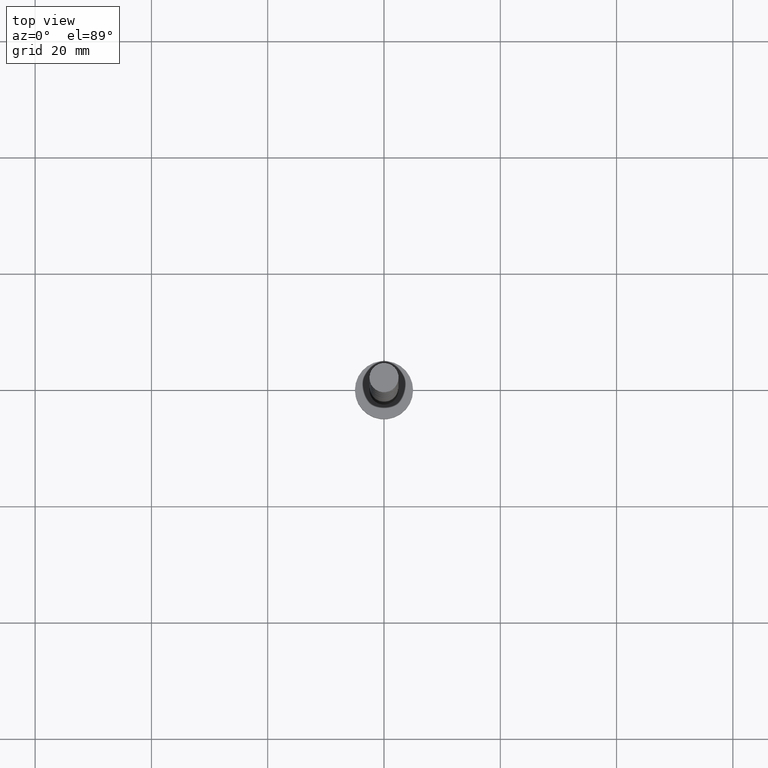
[diagram: clean part render]
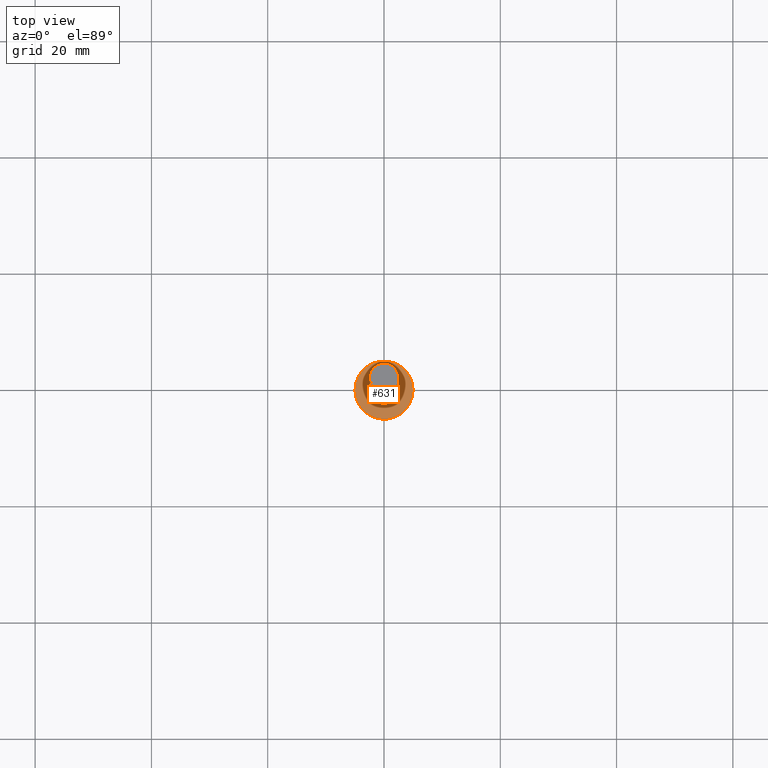
[diagram: same view with one face highlighted and labeled with its STEP entity id]
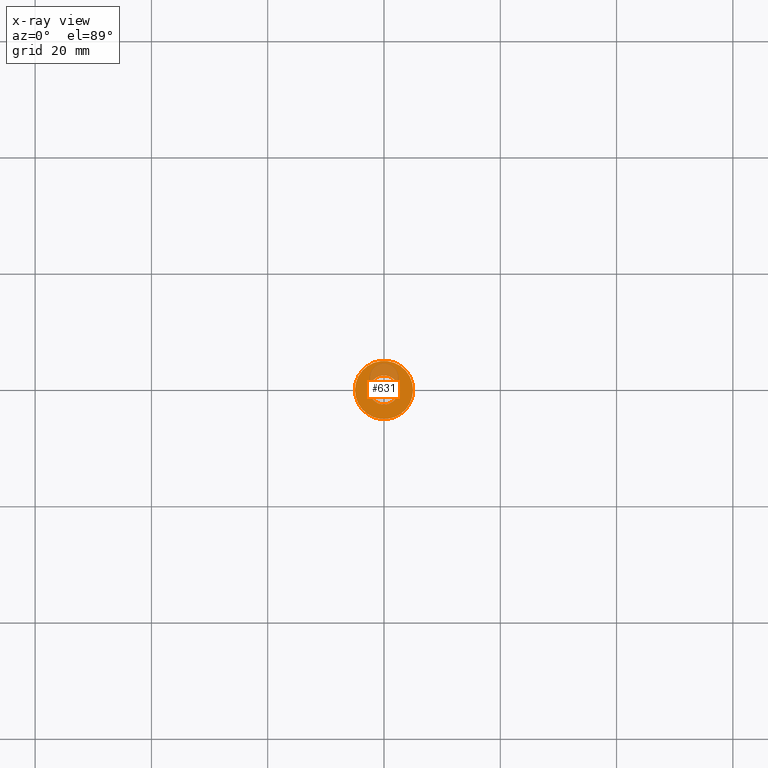
[diagram: x-ray of the same camera — body ghosted, the highlighted face saturated]
A machine part, top view. The second image highlights one B-rep face of the part: STEP entity #631.
The next image is the same camera in x-ray: the body ghosted, the highlighted face saturated — about 18% of this face is hidden behind the body in this view.
In plain terms, the highlighted planar face has unit normal (0, 0, 1).
Its self-contained STEP definition (entity closure, byte-faithful):
#85 = AXIS2_PLACEMENT_3D ( 'NONE', #1490, #363, #738 ) ;
#88 = CIRCLE ( 'NONE', #85, 5.000000000000000000 ) ;
#194 = CARTESIAN_POINT ( 'NONE',  ( 0.000000000000000000, 0.000000000000000000, 3.000000000000000000 ) ) ;
#216 = AXIS2_PLACEMENT_3D ( 'NONE', #1210, #1553, #820 ) ;
#266 = AXIS2_PLACEMENT_3D ( 'NONE', #793, #1040, #1511 ) ;
#335 = VERTEX_POINT ( 'NONE', #1370 ) ;
#363 = DIRECTION ( 'NONE',  ( 0.000000000000000000, 0.000000000000000000, 1.000000000000000000 ) ) ;
#379 = CARTESIAN_POINT ( 'NONE',  ( 0.000000000000000000, 0.000000000000000000, 3.000000000000000000 ) ) ;
#412 = CIRCLE ( 'NONE', #1508, 2.500000000000000000 ) ;
#511 = VERTEX_POINT ( 'NONE', #1157 ) ;
#524 = CIRCLE ( 'NONE', #596, 2.500000000000000000 ) ;
#546 = ORIENTED_EDGE ( 'NONE', *, *, #1474, .T. ) ;
#593 = FACE_BOUND ( 'NONE', #1225, .T. ) ;
#596 = AXIS2_PLACEMENT_3D ( 'NONE', #194, #1289, #1161 ) ;
#631 = ADVANCED_FACE ( 'NONE', ( #593, #940 ), #1316, .T. ) ;
#674 = CARTESIAN_POINT ( 'NONE',  ( 5.000000000000000000, 6.123233995736766282E-16, 3.000000000000000000 ) ) ;
#738 = DIRECTION ( 'NONE',  ( 1.000000000000000000, 0.000000000000000000, 0.000000000000000000 ) ) ;
#793 = CARTESIAN_POINT ( 'NONE',  ( 0.000000000000000000, 0.000000000000000000, 3.000000000000000000 ) ) ;
#820 = DIRECTION ( 'NONE',  ( 1.000000000000000000, 0.000000000000000000, -0.000000000000000000 ) ) ;
#865 = VERTEX_POINT ( 'NONE', #1344 ) ;
#890 = ORIENTED_EDGE ( 'NONE', *, *, #1522, .F. ) ;
#894 = EDGE_CURVE ( 'NONE', #1438, #511, #88, .T. ) ;
#940 = FACE_OUTER_BOUND ( 'NONE', #972, .T. ) ;
#972 = EDGE_LOOP ( 'NONE', ( #546, #1469 ) ) ;
#1040 = DIRECTION ( 'NONE',  ( 0.000000000000000000, 0.000000000000000000, 1.000000000000000000 ) ) ;
#1100 = DIRECTION ( 'NONE',  ( 1.000000000000000000, 0.000000000000000000, 0.000000000000000000 ) ) ;
#1157 = CARTESIAN_POINT ( 'NONE',  ( -5.000000000000000000, 0.000000000000000000, 3.000000000000000000 ) ) ;
#1161 = DIRECTION ( 'NONE',  ( 1.000000000000000000, 0.000000000000000000, 0.000000000000000000 ) ) ;
#1210 = CARTESIAN_POINT ( 'NONE',  ( 0.000000000000000000, 0.000000000000000000, 3.000000000000000000 ) ) ;
#1225 = EDGE_LOOP ( 'NONE', ( #890, #1462 ) ) ;
#1232 = CIRCLE ( 'NONE', #266, 5.000000000000000000 ) ;
#1243 = DIRECTION ( 'NONE',  ( 0.000000000000000000, 0.000000000000000000, 1.000000000000000000 ) ) ;
#1273 = EDGE_CURVE ( 'NONE', #865, #335, #412, .T. ) ;
#1289 = DIRECTION ( 'NONE',  ( 0.000000000000000000, 0.000000000000000000, 1.000000000000000000 ) ) ;
#1316 = PLANE ( 'NONE',  #216 ) ;
#1344 = CARTESIAN_POINT ( 'NONE',  ( 2.500000000000000000, 3.061616997868382648E-16, 3.000000000000000000 ) ) ;
#1370 = CARTESIAN_POINT ( 'NONE',  ( -2.500000000000000000, 0.000000000000000000, 3.000000000000000000 ) ) ;
#1438 = VERTEX_POINT ( 'NONE', #674 ) ;
#1462 = ORIENTED_EDGE ( 'NONE', *, *, #1273, .F. ) ;
#1469 = ORIENTED_EDGE ( 'NONE', *, *, #894, .T. ) ;
#1474 = EDGE_CURVE ( 'NONE', #511, #1438, #1232, .T. ) ;
#1490 = CARTESIAN_POINT ( 'NONE',  ( 0.000000000000000000, 0.000000000000000000, 3.000000000000000000 ) ) ;
#1508 = AXIS2_PLACEMENT_3D ( 'NONE', #379, #1243, #1100 ) ;
#1511 = DIRECTION ( 'NONE',  ( 1.000000000000000000, 0.000000000000000000, 0.000000000000000000 ) ) ;
#1522 = EDGE_CURVE ( 'NONE', #335, #865, #524, .T. ) ;
#1553 = DIRECTION ( 'NONE',  ( 0.000000000000000000, 0.000000000000000000, 1.000000000000000000 ) ) ;